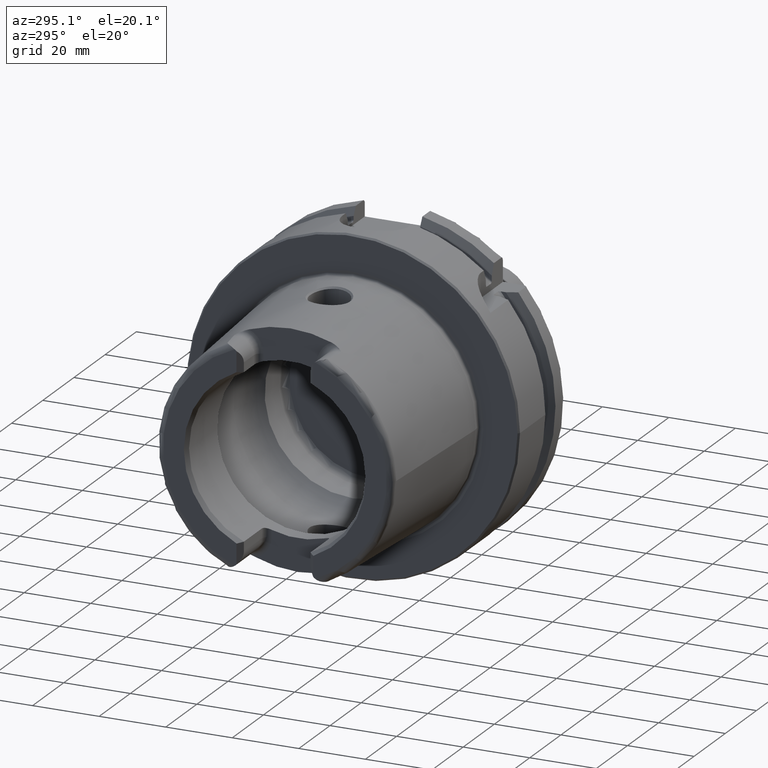
[diagram: clean part render]
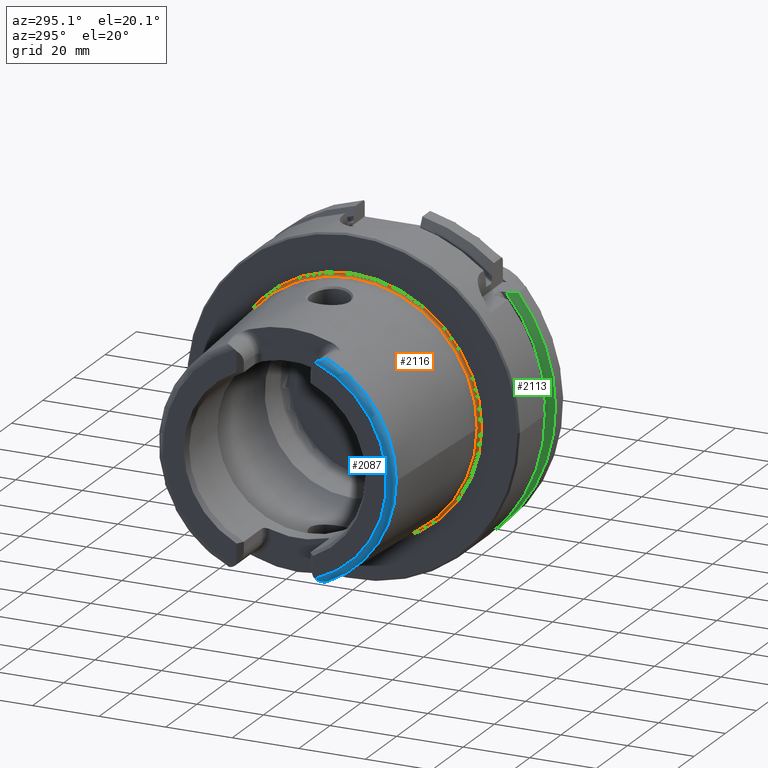
[diagram: same view with three faces highlighted in distinct colors, each labeled with its STEP entity id]
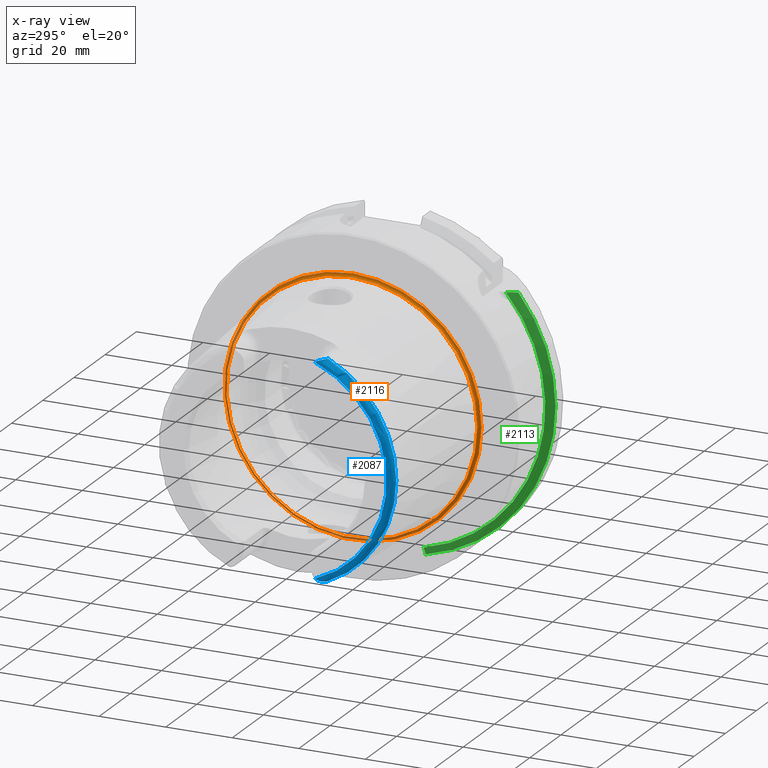
[diagram: x-ray of the same camera — body ghosted, the three highlighted faces saturated]
A machine part, auxiliary view with three faces highlighted in distinct colors.
The next image is the same camera in x-ray (body ghosted, the three faces saturated) — at least one of them is partly hidden behind the body in this view.
Their STEP definitions:

[orange] entity #2116 — the highlighted toroidal blend (fillet) surface has major radius 38.5073 mm and minor (blend) radius 0.8 mm.
#164=TOROIDAL_SURFACE('',#2402,38.5073016032064,0.8);
#332=FACE_OUTER_BOUND('',#467,.T.);
#467=EDGE_LOOP('',(#1974,#1975,#1976,#1977,#1978,#1979));
#801=CIRCLE('',#2378,38.6186400839745);
#802=CIRCLE('',#2379,38.6186400839745);
#812=CIRCLE('',#2400,37.7073016032064);
#813=CIRCLE('',#2401,37.7073016032064);
#814=CIRCLE('',#2403,0.8);
#1016=VERTEX_POINT('',#4530);
#1017=VERTEX_POINT('',#4531);
#1021=VERTEX_POINT('',#4560);
#1022=VERTEX_POINT('',#4561);
#1324=EDGE_CURVE('',#1016,#1017,#801,.T.);
#1325=EDGE_CURVE('',#1017,#1016,#802,.T.);
#1338=EDGE_CURVE('',#1021,#1022,#812,.T.);
#1340=EDGE_CURVE('',#1022,#1021,#813,.T.);
#1341=EDGE_CURVE('',#1022,#1017,#814,.T.);
#1974=ORIENTED_EDGE('',*,*,#1338,.T.);
#1975=ORIENTED_EDGE('',*,*,#1341,.T.);
#1976=ORIENTED_EDGE('',*,*,#1324,.F.);
#1977=ORIENTED_EDGE('',*,*,#1325,.F.);
#1978=ORIENTED_EDGE('',*,*,#1341,.F.);
#1979=ORIENTED_EDGE('',*,*,#1340,.T.);
#2116=ADVANCED_FACE('',(#332),#164,.F.);
#2378=AXIS2_PLACEMENT_3D('',#4532,#2984,#2985);
#2379=AXIS2_PLACEMENT_3D('',#4533,#2986,#2987);
#2400=AXIS2_PLACEMENT_3D('',#4562,#3031,#3032);
#2401=AXIS2_PLACEMENT_3D('',#4564,#3034,#3035);
#2402=AXIS2_PLACEMENT_3D('',#4565,#3036,#3037);
#2403=AXIS2_PLACEMENT_3D('',#4566,#3038,#3039);
#2984=DIRECTION('center_axis',(1.,0.,0.));
#2985=DIRECTION('ref_axis',(0.,0.,-1.));
#2986=DIRECTION('center_axis',(1.,0.,0.));
#2987=DIRECTION('ref_axis',(0.,0.,-1.));
#3031=DIRECTION('center_axis',(1.,0.,0.));
#3032=DIRECTION('ref_axis',(0.,0.,-1.));
#3034=DIRECTION('center_axis',(1.,0.,0.));
#3035=DIRECTION('ref_axis',(0.,0.,-1.));
#3036=DIRECTION('center_axis',(1.,0.,0.));
#3037=DIRECTION('ref_axis',(0.,0.,-1.));
#3038=DIRECTION('center_axis',(0.,-1.,-1.22464679914735E-16));
#3039=DIRECTION('ref_axis',(0.,-1.22464679914735E-16,1.));
#4530=CARTESIAN_POINT('',(0.0922144549932558,-38.6186400839745,-4.7294193966263E-15));
#4531=CARTESIAN_POINT('',(0.0922144549932559,-4.7294193966263E-15,38.6186400839745));
#4532=CARTESIAN_POINT('Origin',(0.0922144549932559,0.,0.));
#4533=CARTESIAN_POINT('Origin',(0.0922144549932559,0.,0.));
#4560=CARTESIAN_POINT('',(-0.7,-37.7073016032064,-4.61781262128506E-15));
#4561=CARTESIAN_POINT('',(-0.7,-4.61781262128506E-15,37.7073016032064));
#4562=CARTESIAN_POINT('Origin',(-0.7,0.,0.));
#4564=CARTESIAN_POINT('Origin',(-0.7,0.,0.));
#4565=CARTESIAN_POINT('Origin',(-0.7,0.,0.));
#4566=CARTESIAN_POINT('Origin',(-0.7,-4.71578436521685E-15,38.5073016032064));

[blue] entity #2087 — the highlighted toroidal blend (fillet) surface has major radius 33.6002 mm and minor (blend) radius 2 mm.
#33=B_SPLINE_CURVE_WITH_KNOTS('',3,(#3236,#3237,#3238,#3239,#3240,#3241,
#3242,#3243,#3244,#3245,#3246,#3247),.UNSPECIFIED.,.F.,.F.,(4,2,2,2,2,4),
(-0.744571126726518,-0.701342830888641,-0.656522678464628,-0.531122919946975,
-0.406784567241786,-0.320835419118986),.UNSPECIFIED.);
#84=B_SPLINE_CURVE_WITH_KNOTS('',3,(#4463,#4464,#4465,#4466,#4467,#4468,
#4469,#4470,#4471,#4472,#4473,#4474),.UNSPECIFIED.,.F.,.F.,(4,2,2,2,2,4),
(-0.330531435638092,-0.267908000768824,-0.159978118105095,-0.0786368985358016,
-0.0319888850382436,0.),.UNSPECIFIED.);
#157=TOROIDAL_SURFACE('',#2341,33.6001839277785,2.);
#303=FACE_OUTER_BOUND('',#434,.T.);
#434=EDGE_LOOP('',(#1835,#1836,#1837,#1838,#1839));
#715=CIRCLE('',#2207,33.6001839277785);
#721=CIRCLE('',#2223,35.5976786130245);
#725=CIRCLE('',#2227,35.5976786130245);
#869=VERTEX_POINT('',#3217);
#870=VERTEX_POINT('',#3219);
#875=VERTEX_POINT('',#3235);
#890=VERTEX_POINT('',#3454);
#891=VERTEX_POINT('',#3456);
#1093=EDGE_CURVE('',#870,#869,#715,.T.);
#1101=EDGE_CURVE('',#875,#870,#33,.T.);
#1121=EDGE_CURVE('',#890,#891,#721,.T.);
#1134=EDGE_CURVE('',#875,#890,#725,.T.);
#1298=EDGE_CURVE('',#869,#891,#84,.T.);
#1835=ORIENTED_EDGE('',*,*,#1101,.T.);
#1836=ORIENTED_EDGE('',*,*,#1093,.T.);
#1837=ORIENTED_EDGE('',*,*,#1298,.T.);
#1838=ORIENTED_EDGE('',*,*,#1121,.F.);
#1839=ORIENTED_EDGE('',*,*,#1134,.F.);
#2087=ADVANCED_FACE('',(#303),#157,.T.);
#2207=AXIS2_PLACEMENT_3D('',#3220,#2566,#2567);
#2223=AXIS2_PLACEMENT_3D('',#3457,#2610,#2611);
#2227=AXIS2_PLACEMENT_3D('',#3584,#2618,#2619);
#2341=AXIS2_PLACEMENT_3D('',#4462,#2904,#2905);
#2566=DIRECTION('center_axis',(1.,0.,0.));
#2567=DIRECTION('ref_axis',(0.,0.,-1.));
#2610=DIRECTION('center_axis',(1.,0.,0.));
#2611=DIRECTION('ref_axis',(0.,0.,-1.));
#2618=DIRECTION('center_axis',(1.,0.,0.));
#2619=DIRECTION('ref_axis',(0.,0.,-1.));
#2904=DIRECTION('center_axis',(1.,0.,0.));
#2905=DIRECTION('ref_axis',(0.,0.,-1.));
#3217=CARTESIAN_POINT('',(-50.,-12.0743049948301,-31.355757348091));
#3219=CARTESIAN_POINT('',(-50.,-12.0743049948301,31.355757348091));
#3220=CARTESIAN_POINT('Origin',(-50.,0.,0.));
#3235=CARTESIAN_POINT('',(-48.1000748840304,-15.0787152148571,32.2463497175327));
#3236=CARTESIAN_POINT('Ctrl Pts',(-48.1000748840304,-15.0787152148571,32.2463497175327));
#3237=CARTESIAN_POINT('Ctrl Pts',(-48.2106037175751,-15.0644627457708,32.2469012894916));
#3238=CARTESIAN_POINT('Ctrl Pts',(-48.3154292138326,-15.0273539899824,32.2483385926998));
#3239=CARTESIAN_POINT('Ctrl Pts',(-48.5163157198425,-14.9224481921473,32.2501843906849));
#3240=CARTESIAN_POINT('Ctrl Pts',(-48.6121978837474,-14.8534224082598,32.2504380645671));
#3241=CARTESIAN_POINT('Ctrl Pts',(-48.945264184207,-14.5689466462258,32.2439376039327));
#3242=CARTESIAN_POINT('Ctrl Pts',(-49.1880723127852,-14.2607780319834,32.2227822574558));
#3243=CARTESIAN_POINT('Ctrl Pts',(-49.6101150709732,-13.5547183211213,32.0774653757186));
#3244=CARTESIAN_POINT('Ctrl Pts',(-49.7793847368059,-13.1765954395989,31.957165019384));
#3245=CARTESIAN_POINT('Ctrl Pts',(-49.9574602860506,-12.5580264083439,31.6658578550016));
#3246=CARTESIAN_POINT('Ctrl Pts',(-50.,-12.3091419271059,31.5216553492714));
#3247=CARTESIAN_POINT('Ctrl Pts',(-50.,-12.0743049948301,31.355757348091));
#3454=CARTESIAN_POINT('',(-48.1000748840304,-35.5976786130245,-4.35945831705167E-15));
#3456=CARTESIAN_POINT('',(-48.1000748840304,-15.0787152148571,-32.2463497175327));
#3457=CARTESIAN_POINT('Origin',(-48.1000748840304,0.,0.));
#3584=CARTESIAN_POINT('Origin',(-48.1000748840304,0.,0.));
#4462=CARTESIAN_POINT('Origin',(-48.,0.,0.));
#4463=CARTESIAN_POINT('Ctrl Pts',(-50.,-12.0743049948301,-31.355757348091));
#4464=CARTESIAN_POINT('Ctrl Pts',(-50.,-12.2858381230511,-31.5051926299064));
#4465=CARTESIAN_POINT('Ctrl Pts',(-49.9653696826563,-12.5170331398669,-31.6430588255455));
#4466=CARTESIAN_POINT('Ctrl Pts',(-49.7810065498998,-13.1911222585011,-31.9692156023964));
#4467=CARTESIAN_POINT('Ctrl Pts',(-49.5806767805337,-13.6194685503754,-32.0969374367804));
#4468=CARTESIAN_POINT('Ctrl Pts',(-49.1716377200869,-14.2730899346346,-32.2192774131036));
#4469=CARTESIAN_POINT('Ctrl Pts',(-48.9774936618895,-14.5201969661755,-32.2395201073332));
#4470=CARTESIAN_POINT('Ctrl Pts',(-48.6675943633755,-14.8125911006811,-32.2505512851489));
#4471=CARTESIAN_POINT('Ctrl Pts',(-48.5398374959924,-14.912197389574,-32.2504544601106));
#4472=CARTESIAN_POINT('Ctrl Pts',(-48.3063803700173,-15.0305209025154,-32.2482139663407));
#4473=CARTESIAN_POINT('Ctrl Pts',(-48.2058276135777,-15.0650786147019,-32.2468774553032));
#4474=CARTESIAN_POINT('Ctrl Pts',(-48.1000748840304,-15.0787152148571,-32.2463497175327));

[green] entity #2113 — the highlighted conical surface has half-angle 60 deg.
#20=(
BOUNDED_CURVE()
B_SPLINE_CURVE(2,(#4032,#4033,#4034),.UNSPECIFIED.,.F.,.F.)
B_SPLINE_CURVE_WITH_KNOTS((3,3),(0.,0.343884390880419),.UNSPECIFIED.)
CURVE()
GEOMETRIC_REPRESENTATION_ITEM()
RATIONAL_B_SPLINE_CURVE((1.,1.00052016257005,1.))
REPRESENTATION_ITEM('')
);
#25=(
BOUNDED_CURVE()
B_SPLINE_CURVE(2,(#4247,#4248,#4249),.UNSPECIFIED.,.F.,.F.)
B_SPLINE_CURVE_WITH_KNOTS((3,3),(0.,0.28292349080556),.UNSPECIFIED.)
CURVE()
GEOMETRIC_REPRESENTATION_ITEM()
RATIONAL_B_SPLINE_CURVE((1.,1.0003193410929,1.))
REPRESENTATION_ITEM('')
);
#329=FACE_OUTER_BOUND('',#464,.T.);
#464=EDGE_LOOP('',(#1961,#1962,#1963,#1964));
#758=CIRCLE('',#2290,50.);
#810=CIRCLE('',#2395,47.5975952641917);
#938=VERTEX_POINT('',#4029);
#939=VERTEX_POINT('',#4031);
#973=VERTEX_POINT('',#4244);
#974=VERTEX_POINT('',#4246);
#1184=EDGE_CURVE('',#939,#938,#20,.T.);
#1234=EDGE_CURVE('',#974,#973,#25,.T.);
#1250=EDGE_CURVE('',#939,#973,#758,.T.);
#1335=EDGE_CURVE('',#938,#974,#810,.T.);
#1961=ORIENTED_EDGE('',*,*,#1184,.T.);
#1962=ORIENTED_EDGE('',*,*,#1335,.T.);
#1963=ORIENTED_EDGE('',*,*,#1234,.T.);
#1964=ORIENTED_EDGE('',*,*,#1250,.F.);
#1994=CONICAL_SURFACE('',#2396,48.7987976320958,1.0471975511966);
#2113=ADVANCED_FACE('',(#329),#1994,.T.);
#2290=AXIS2_PLACEMENT_3D('',#4309,#2786,#2787);
#2395=AXIS2_PLACEMENT_3D('',#4553,#3020,#3021);
#2396=AXIS2_PLACEMENT_3D('',#4554,#3022,#3023);
#2786=DIRECTION('center_axis',(1.,0.,0.));
#2787=DIRECTION('ref_axis',(0.,0.,-1.));
#3020=DIRECTION('center_axis',(1.,0.,0.));
#3021=DIRECTION('ref_axis',(0.,0.,-1.));
#3022=DIRECTION('center_axis',(1.,0.,0.));
#3023=DIRECTION('ref_axis',(0.,-0.951449961441176,-0.307803461438603));
#4029=CARTESIAN_POINT('',(21.875,-35.6830642593065,31.5));
#4031=CARTESIAN_POINT('',(23.2620290209214,-38.8297566307078,31.5));
#4032=CARTESIAN_POINT('Ctrl Pts',(23.2620290209214,-38.8297566307078,31.5));
#4033=CARTESIAN_POINT('Ctrl Pts',(22.5392272442767,-37.2176818849707,31.5));
#4034=CARTESIAN_POINT('Ctrl Pts',(21.875,-35.6830642593065,31.5));
#4244=CARTESIAN_POINT('',(23.2620290209214,-11.,-48.7749935930288));
#4246=CARTESIAN_POINT('',(21.875,-11.,-46.3090819919138));
#4247=CARTESIAN_POINT('Ctrl Pts',(21.875,-11.,-46.3090819919138));
#4248=CARTESIAN_POINT('Ctrl Pts',(22.5505288964237,-11.,-47.5116880808802));
#4249=CARTESIAN_POINT('Ctrl Pts',(23.2620290209214,-11.,-48.7749935930288));
#4309=CARTESIAN_POINT('Origin',(23.2620290209214,0.,0.));
#4553=CARTESIAN_POINT('Origin',(21.875,0.,0.));
#4554=CARTESIAN_POINT('Origin',(22.5685145104607,0.,0.));